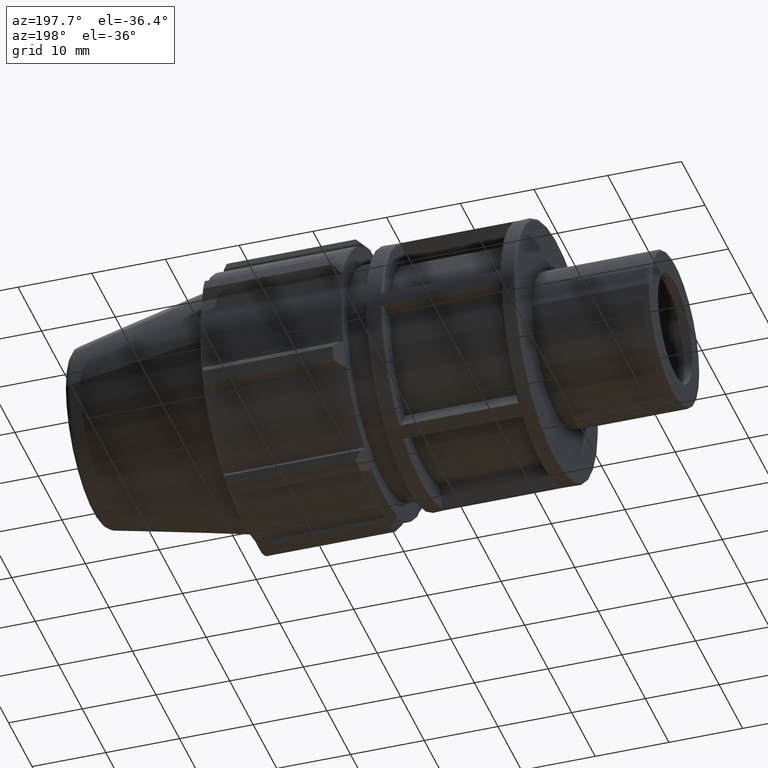
[diagram: clean part render]
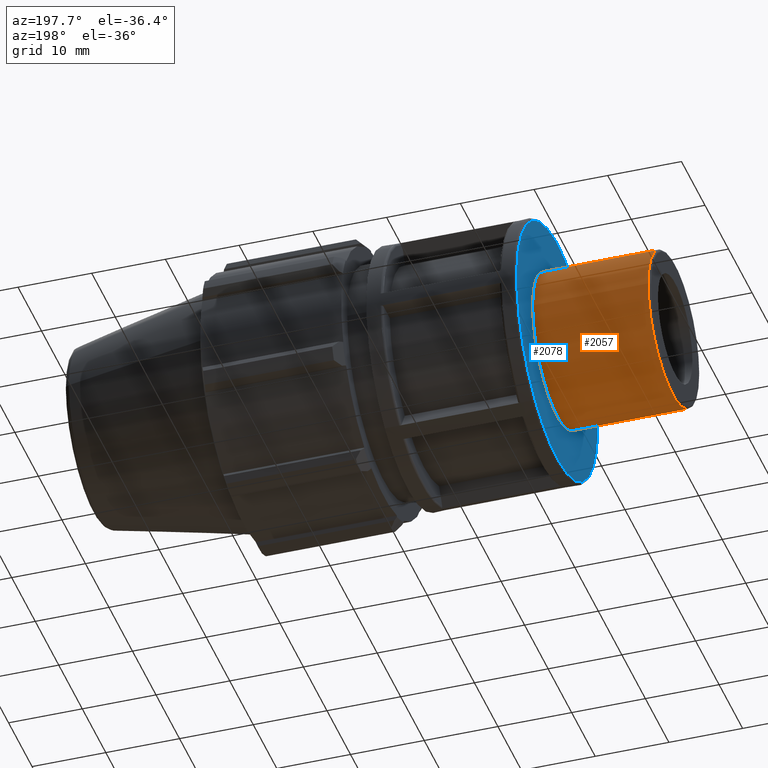
[diagram: same view with the hole feature highlighted: cylindrical wall and planar end face, labeled with their STEP entity ids]
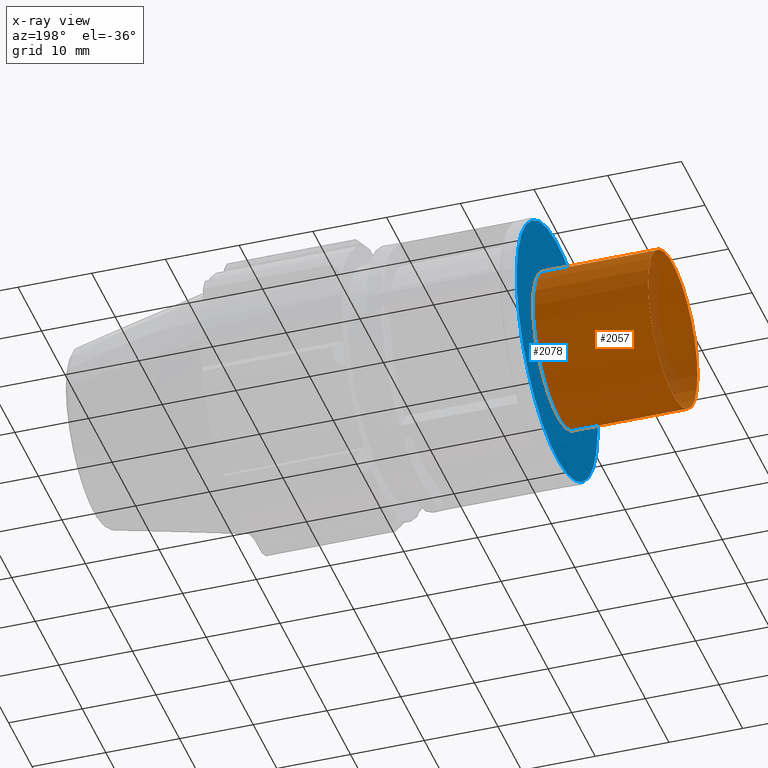
[diagram: x-ray of the same camera — body ghosted, the hole faces saturated]
A machine part, auxiliary view. The highlighted faces form one hole feature of diameter 20.955 mm: the cylindrical wall (entity #2057, orange) and its adjacent planar end face (entity #2078, blue) — they share a circular edge in the B-rep.
The next image is the same camera in x-ray (body ghosted, the hole faces saturated) — the bore reads through the body.
Wall:
#370=CYLINDRICAL_SURFACE('',#2179,10.4775);
#462=FACE_BOUND('',#607,.T.);
#487=FACE_OUTER_BOUND('',#606,.T.);
#606=EDGE_LOOP('',(#1338));
#607=EDGE_LOOP('',(#1339));
#745=CIRCLE('',#2176,10.4775);
#747=CIRCLE('',#2180,10.4775);
#839=VERTEX_POINT('',#2957);
#841=VERTEX_POINT('',#2963);
#1041=EDGE_CURVE('',#839,#839,#745,.T.);
#1043=EDGE_CURVE('',#841,#841,#747,.T.);
#1338=ORIENTED_EDGE('',*,*,#1043,.F.);
#1339=ORIENTED_EDGE('',*,*,#1041,.F.);
#2057=ADVANCED_FACE('',(#487,#462),#370,.T.);
#2176=AXIS2_PLACEMENT_3D('',#2958,#2391,#2392);
#2179=AXIS2_PLACEMENT_3D('',#2962,#2397,#2398);
#2180=AXIS2_PLACEMENT_3D('',#2964,#2399,#2400);
#2391=DIRECTION('center_axis',(-1.,0.,0.));
#2392=DIRECTION('ref_axis',(0.,-1.,1.83697019872103E-16));
#2397=DIRECTION('center_axis',(1.,0.,0.));
#2398=DIRECTION('ref_axis',(0.,1.,0.));
#2399=DIRECTION('center_axis',(1.,0.,0.));
#2400=DIRECTION('ref_axis',(0.,0.,-1.));
#2957=CARTESIAN_POINT('',(0.32,10.4775,-3.2078092095166E-15));
#2958=CARTESIAN_POINT('Origin',(0.32,0.,0.));
#2962=CARTESIAN_POINT('Origin',(8.,0.,0.));
#2963=CARTESIAN_POINT('',(16.,6.13542480703767,-8.49320720853947));
#2964=CARTESIAN_POINT('Origin',(16.,0.,0.));
End face:
#404=PLANE('',#2234);
#471=FACE_BOUND('',#637,.T.);
#508=FACE_OUTER_BOUND('',#636,.T.);
#636=EDGE_LOOP('',(#1440));
#637=EDGE_LOOP('',(#1441));
#747=CIRCLE('',#2180,10.4775);
#780=CIRCLE('',#2233,17.23);
#841=VERTEX_POINT('',#2963);
#904=VERTEX_POINT('',#3343);
#1043=EDGE_CURVE('',#841,#841,#747,.T.);
#1124=EDGE_CURVE('',#904,#904,#780,.T.);
#1440=ORIENTED_EDGE('',*,*,#1124,.F.);
#1441=ORIENTED_EDGE('',*,*,#1043,.T.);
#2078=ADVANCED_FACE('',(#508,#471),#404,.T.);
#2180=AXIS2_PLACEMENT_3D('',#2964,#2399,#2400);
#2233=AXIS2_PLACEMENT_3D('',#3344,#2529,#2530);
#2234=AXIS2_PLACEMENT_3D('',#3345,#2531,#2532);
#2399=DIRECTION('center_axis',(1.,0.,0.));
#2400=DIRECTION('ref_axis',(0.,0.,-1.));
#2529=DIRECTION('center_axis',(1.,0.,0.));
#2530=DIRECTION('ref_axis',(0.,-0.551719337341258,0.834029839276583));
#2531=DIRECTION('center_axis',(-1.,0.,0.));
#2532=DIRECTION('ref_axis',(0.,0.,1.));
#2963=CARTESIAN_POINT('',(16.,6.13542480703767,-8.49320720853947));
#2964=CARTESIAN_POINT('Origin',(16.,0.,0.));
#3343=CARTESIAN_POINT('',(16.,9.50612418238988,-14.3703341307355));
#3344=CARTESIAN_POINT('Origin',(16.,0.,0.));
#3345=CARTESIAN_POINT('Origin',(16.,17.55,0.));